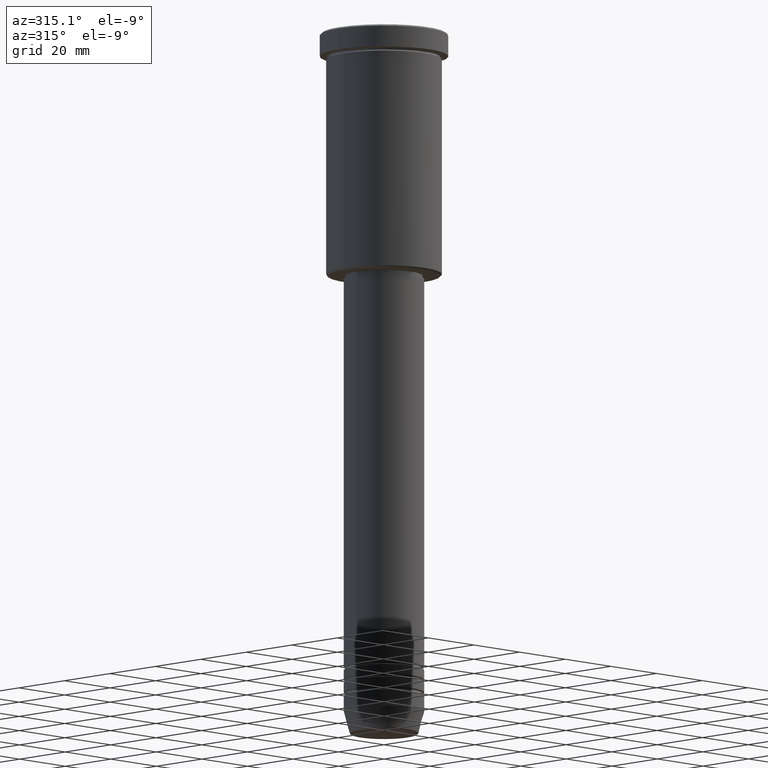
[diagram: clean part render]
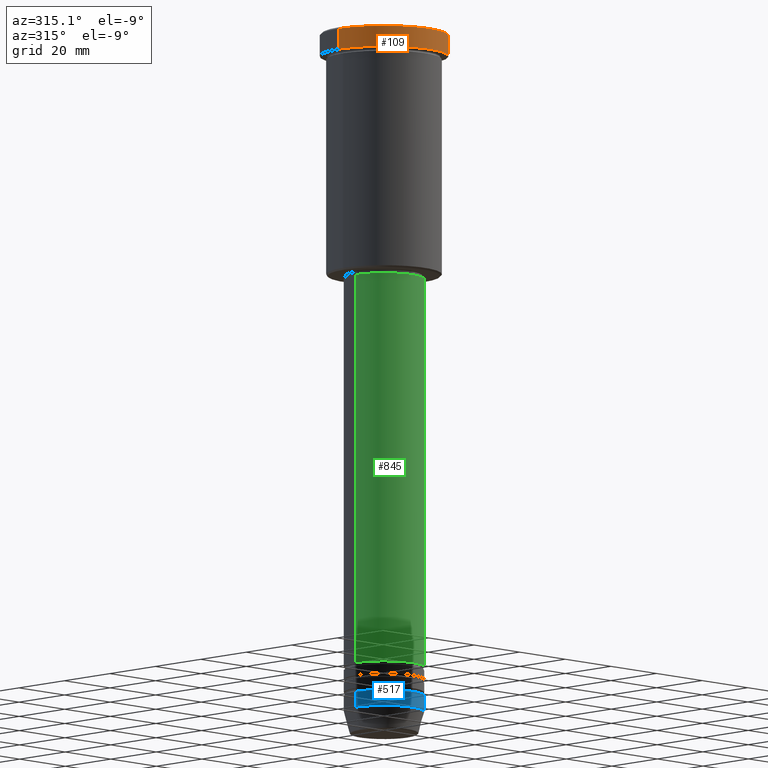
[diagram: same view with three faces highlighted in distinct colors, each labeled with its STEP entity id]
A machine part, auxiliary view with three faces highlighted in distinct colors.
Their STEP definitions:

[orange] entity #109 — the highlighted cylindrical surface (partial cylindrical patch) has radius 20 mm, axis along (-0, -0, 1).
#8 = CARTESIAN_POINT ( 'NONE',  ( 20.00000000000000000, 0.000000000000000000, -6.999999999999995559 ) ) ;
#17 = CARTESIAN_POINT ( 'NONE',  ( -20.00000000000000000, 2.449293598294706513E-15, 0.000000000000000000 ) ) ;
#36 = LINE ( 'NONE', #569, #1097 ) ;
#46 = CIRCLE ( 'NONE', #637, 20.00000000000000000 ) ;
#71 = VERTEX_POINT ( 'NONE', #8 ) ;
#101 = CARTESIAN_POINT ( 'NONE',  ( -20.00000000000000000, 2.449293598294706513E-15, -0.4999999999999970024 ) ) ;
#102 = DIRECTION ( 'NONE',  ( -0.000000000000000000, -0.000000000000000000, 1.000000000000000000 ) ) ;
#109 = ADVANCED_FACE ( 'NONE', ( #302 ), #951, .T. ) ;
#148 = ORIENTED_EDGE ( 'NONE', *, *, #631, .T. ) ;
#202 = ORIENTED_EDGE ( 'NONE', *, *, #563, .F. ) ;
#219 = ORIENTED_EDGE ( 'NONE', *, *, #267, .T. ) ;
#220 = DIRECTION ( 'NONE',  ( 1.000000000000000000, 0.000000000000000000, 0.000000000000000000 ) ) ;
#249 = CARTESIAN_POINT ( 'NONE',  ( 0.000000000000000000, 0.000000000000000000, -6.999999999999995559 ) ) ;
#267 = EDGE_CURVE ( 'NONE', #819, #71, #46, .T. ) ;
#287 = DIRECTION ( 'NONE',  ( -0.000000000000000000, -0.000000000000000000, 1.000000000000000000 ) ) ;
#300 = CARTESIAN_POINT ( 'NONE',  ( 0.000000000000000000, 0.000000000000000000, -0.4999999999999970024 ) ) ;
#302 = FACE_OUTER_BOUND ( 'NONE', #368, .T. ) ;
#368 = EDGE_LOOP ( 'NONE', ( #202, #219, #386, #148 ) ) ;
#386 = ORIENTED_EDGE ( 'NONE', *, *, #1020, .T. ) ;
#393 = DIRECTION ( 'NONE',  ( 0.000000000000000000, 0.000000000000000000, -1.000000000000000000 ) ) ;
#411 = CIRCLE ( 'NONE', #468, 20.00000000000000000 ) ;
#468 = AXIS2_PLACEMENT_3D ( 'NONE', #300, #393, #677 ) ;
#481 = AXIS2_PLACEMENT_3D ( 'NONE', #1108, #287, #220 ) ;
#563 = EDGE_CURVE ( 'NONE', #819, #1093, #1024, .T. ) ;
#569 = CARTESIAN_POINT ( 'NONE',  ( 20.00000000000000000, 0.000000000000000000, 0.000000000000000000 ) ) ;
#571 = VERTEX_POINT ( 'NONE', #1033 ) ;
#581 = DIRECTION ( 'NONE',  ( -0.000000000000000000, -0.000000000000000000, 1.000000000000000000 ) ) ;
#617 = DIRECTION ( 'NONE',  ( -0.000000000000000000, -0.000000000000000000, 1.000000000000000000 ) ) ;
#631 = EDGE_CURVE ( 'NONE', #571, #1093, #411, .T. ) ;
#637 = AXIS2_PLACEMENT_3D ( 'NONE', #249, #617, #886 ) ;
#638 = VECTOR ( 'NONE', #102, 1000.000000000000000 ) ;
#677 = DIRECTION ( 'NONE',  ( 1.000000000000000000, 0.000000000000000000, 0.000000000000000000 ) ) ;
#819 = VERTEX_POINT ( 'NONE', #875 ) ;
#875 = CARTESIAN_POINT ( 'NONE',  ( -20.00000000000000000, 2.449293598294706513E-15, -6.999999999999995559 ) ) ;
#886 = DIRECTION ( 'NONE',  ( 1.000000000000000000, 0.000000000000000000, 0.000000000000000000 ) ) ;
#951 = CYLINDRICAL_SURFACE ( 'NONE', #481, 20.00000000000000000 ) ;
#1020 = EDGE_CURVE ( 'NONE', #71, #571, #36, .T. ) ;
#1024 = LINE ( 'NONE', #17, #638 ) ;
#1033 = CARTESIAN_POINT ( 'NONE',  ( 20.00000000000000000, 0.000000000000000000, -0.4999999999999970024 ) ) ;
#1093 = VERTEX_POINT ( 'NONE', #101 ) ;
#1097 = VECTOR ( 'NONE', #581, 1000.000000000000000 ) ;
#1108 = CARTESIAN_POINT ( 'NONE',  ( 0.000000000000000000, 0.000000000000000000, 0.000000000000000000 ) ) ;

[blue] entity #517 — the highlighted cylindrical surface (partial cylindrical patch) has radius 12.5 mm, axis along (-0, -0, 1).
#4 = ORIENTED_EDGE ( 'NONE', *, *, #680, .F. ) ;
#6 = AXIS2_PLACEMENT_3D ( 'NONE', #1179, #367, #818 ) ;
#54 = DIRECTION ( 'NONE',  ( -0.000000000000000000, -0.000000000000000000, 1.000000000000000000 ) ) ;
#77 = CYLINDRICAL_SURFACE ( 'NONE', #980, 12.50000000000000000 ) ;
#100 = VECTOR ( 'NONE', #54, 1000.000000000000000 ) ;
#122 = CARTESIAN_POINT ( 'NONE',  ( 0.000000000000000000, 0.000000000000000000, -208.0000000000000000 ) ) ;
#123 = ORIENTED_EDGE ( 'NONE', *, *, #431, .T. ) ;
#146 = LINE ( 'NONE', #804, #544 ) ;
#149 = ORIENTED_EDGE ( 'NONE', *, *, #373, .T. ) ;
#154 = DIRECTION ( 'NONE',  ( -0.000000000000000000, -0.000000000000000000, 1.000000000000000000 ) ) ;
#245 = VERTEX_POINT ( 'NONE', #414 ) ;
#337 = CARTESIAN_POINT ( 'NONE',  ( -12.50000000000000000, 1.530808498934191521E-15, -208.0000000000000000 ) ) ;
#339 = CARTESIAN_POINT ( 'NONE',  ( -12.50000000000000000, 1.530808498934191521E-15, 0.000000000000000000 ) ) ;
#340 = VERTEX_POINT ( 'NONE', #337 ) ;
#358 = VERTEX_POINT ( 'NONE', #418 ) ;
#362 = FACE_OUTER_BOUND ( 'NONE', #958, .T. ) ;
#367 = DIRECTION ( 'NONE',  ( -0.000000000000000000, -0.000000000000000000, 1.000000000000000000 ) ) ;
#373 = EDGE_CURVE ( 'NONE', #245, #358, #146, .T. ) ;
#414 = CARTESIAN_POINT ( 'NONE',  ( 12.50000000000000000, 0.000000000000000000, -213.0000000000000000 ) ) ;
#418 = CARTESIAN_POINT ( 'NONE',  ( 12.50000000000000000, 0.000000000000000000, -208.0000000000000000 ) ) ;
#431 = EDGE_CURVE ( 'NONE', #896, #245, #504, .T. ) ;
#443 = DIRECTION ( 'NONE',  ( -0.000000000000000000, -0.000000000000000000, 1.000000000000000000 ) ) ;
#504 = CIRCLE ( 'NONE', #6, 12.50000000000000000 ) ;
#517 = ADVANCED_FACE ( 'NONE', ( #362 ), #77, .T. ) ;
#544 = VECTOR ( 'NONE', #154, 1000.000000000000000 ) ;
#680 = EDGE_CURVE ( 'NONE', #340, #358, #1155, .T. ) ;
#695 = AXIS2_PLACEMENT_3D ( 'NONE', #122, #1113, #1124 ) ;
#710 = LINE ( 'NONE', #339, #100 ) ;
#738 = CARTESIAN_POINT ( 'NONE',  ( 0.000000000000000000, 0.000000000000000000, 0.000000000000000000 ) ) ;
#756 = EDGE_CURVE ( 'NONE', #896, #340, #710, .T. ) ;
#804 = CARTESIAN_POINT ( 'NONE',  ( 12.50000000000000000, 0.000000000000000000, 0.000000000000000000 ) ) ;
#818 = DIRECTION ( 'NONE',  ( 1.000000000000000000, 0.000000000000000000, 0.000000000000000000 ) ) ;
#827 = DIRECTION ( 'NONE',  ( 1.000000000000000000, 0.000000000000000000, 0.000000000000000000 ) ) ;
#896 = VERTEX_POINT ( 'NONE', #1089 ) ;
#958 = EDGE_LOOP ( 'NONE', ( #1083, #123, #149, #4 ) ) ;
#980 = AXIS2_PLACEMENT_3D ( 'NONE', #738, #443, #827 ) ;
#1083 = ORIENTED_EDGE ( 'NONE', *, *, #756, .F. ) ;
#1089 = CARTESIAN_POINT ( 'NONE',  ( -12.50000000000000000, 1.530808498934191521E-15, -213.0000000000000000 ) ) ;
#1113 = DIRECTION ( 'NONE',  ( -0.000000000000000000, -0.000000000000000000, 1.000000000000000000 ) ) ;
#1124 = DIRECTION ( 'NONE',  ( 1.000000000000000000, 0.000000000000000000, 0.000000000000000000 ) ) ;
#1155 = CIRCLE ( 'NONE', #695, 12.50000000000000000 ) ;
#1179 = CARTESIAN_POINT ( 'NONE',  ( 0.000000000000000000, 0.000000000000000000, -213.0000000000000000 ) ) ;

[green] entity #845 — the highlighted cylindrical surface (partial cylindrical patch) has radius 12.5 mm, axis along (-0, -0, 1).
#19 = DIRECTION ( 'NONE',  ( -0.000000000000000000, -0.000000000000000000, 1.000000000000000000 ) ) ;
#23 = DIRECTION ( 'NONE',  ( -0.000000000000000000, -0.000000000000000000, 1.000000000000000000 ) ) ;
#38 = DIRECTION ( 'NONE',  ( 1.000000000000000000, 0.000000000000000000, 0.000000000000000000 ) ) ;
#66 = CIRCLE ( 'NONE', #1073, 12.50000000000000000 ) ;
#103 = EDGE_CURVE ( 'NONE', #387, #259, #805, .T. ) ;
#143 = CARTESIAN_POINT ( 'NONE',  ( 0.000000000000000000, 0.000000000000000000, 0.000000000000000000 ) ) ;
#201 = CARTESIAN_POINT ( 'NONE',  ( -12.50000000000000000, 1.530808498934191521E-15, 0.000000000000000000 ) ) ;
#216 = CARTESIAN_POINT ( 'NONE',  ( 0.000000000000000000, 0.000000000000000000, -198.9999999999999716 ) ) ;
#259 = VERTEX_POINT ( 'NONE', #326 ) ;
#303 = DIRECTION ( 'NONE',  ( 1.000000000000000000, 0.000000000000000000, 0.000000000000000000 ) ) ;
#304 = CARTESIAN_POINT ( 'NONE',  ( 0.000000000000000000, 0.000000000000000000, -77.00000000000004263 ) ) ;
#311 = AXIS2_PLACEMENT_3D ( 'NONE', #304, #841, #38 ) ;
#326 = CARTESIAN_POINT ( 'NONE',  ( 12.50000000000000000, 0.000000000000000000, -77.00000000000004263 ) ) ;
#374 = AXIS2_PLACEMENT_3D ( 'NONE', #143, #971, #615 ) ;
#387 = VERTEX_POINT ( 'NONE', #689 ) ;
#497 = ORIENTED_EDGE ( 'NONE', *, *, #687, .F. ) ;
#557 = VERTEX_POINT ( 'NONE', #630 ) ;
#566 = DIRECTION ( 'NONE',  ( -0.000000000000000000, -0.000000000000000000, 1.000000000000000000 ) ) ;
#585 = CARTESIAN_POINT ( 'NONE',  ( 12.50000000000000000, 0.000000000000000000, 0.000000000000000000 ) ) ;
#586 = ORIENTED_EDGE ( 'NONE', *, *, #103, .T. ) ;
#606 = EDGE_CURVE ( 'NONE', #557, #259, #1112, .T. ) ;
#615 = DIRECTION ( 'NONE',  ( 1.000000000000000000, 0.000000000000000000, 0.000000000000000000 ) ) ;
#626 = CARTESIAN_POINT ( 'NONE',  ( -12.50000000000000000, 1.530808498934191521E-15, -198.9999999999999716 ) ) ;
#630 = CARTESIAN_POINT ( 'NONE',  ( -12.50000000000000000, 1.530808498934191521E-15, -77.00000000000004263 ) ) ;
#659 = LINE ( 'NONE', #201, #1015 ) ;
#674 = ORIENTED_EDGE ( 'NONE', *, *, #606, .F. ) ;
#687 = EDGE_CURVE ( 'NONE', #977, #557, #659, .T. ) ;
#689 = CARTESIAN_POINT ( 'NONE',  ( 12.50000000000000000, 0.000000000000000000, -198.9999999999999716 ) ) ;
#805 = LINE ( 'NONE', #585, #1174 ) ;
#841 = DIRECTION ( 'NONE',  ( -0.000000000000000000, -0.000000000000000000, 1.000000000000000000 ) ) ;
#845 = ADVANCED_FACE ( 'NONE', ( #1141 ), #964, .T. ) ;
#946 = EDGE_LOOP ( 'NONE', ( #497, #1057, #586, #674 ) ) ;
#964 = CYLINDRICAL_SURFACE ( 'NONE', #374, 12.50000000000000000 ) ;
#971 = DIRECTION ( 'NONE',  ( -0.000000000000000000, -0.000000000000000000, 1.000000000000000000 ) ) ;
#977 = VERTEX_POINT ( 'NONE', #626 ) ;
#1015 = VECTOR ( 'NONE', #566, 1000.000000000000000 ) ;
#1057 = ORIENTED_EDGE ( 'NONE', *, *, #1085, .T. ) ;
#1073 = AXIS2_PLACEMENT_3D ( 'NONE', #216, #23, #303 ) ;
#1085 = EDGE_CURVE ( 'NONE', #977, #387, #66, .T. ) ;
#1112 = CIRCLE ( 'NONE', #311, 12.50000000000000000 ) ;
#1141 = FACE_OUTER_BOUND ( 'NONE', #946, .T. ) ;
#1174 = VECTOR ( 'NONE', #19, 1000.000000000000000 ) ;